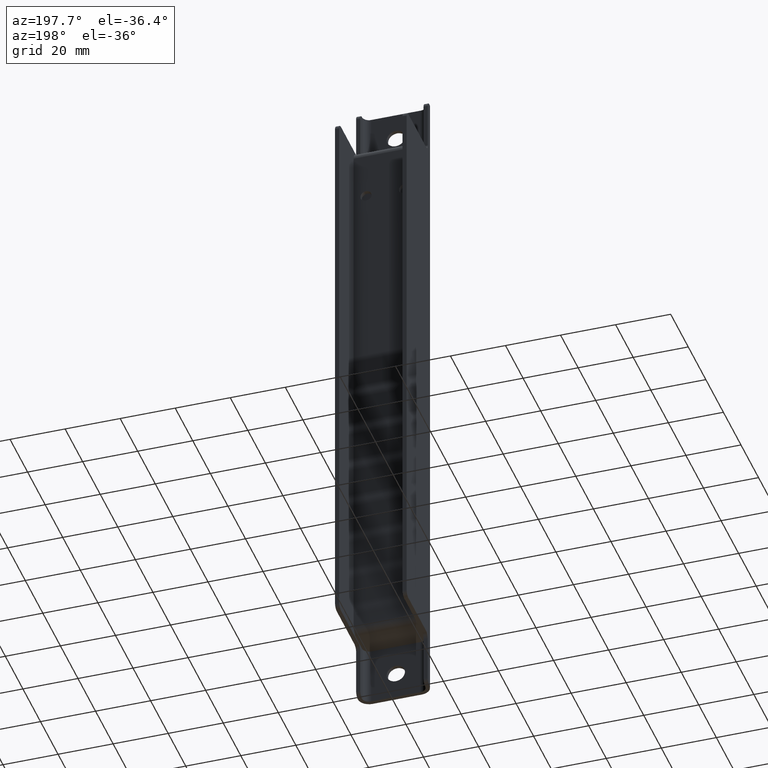
[diagram: clean part render]
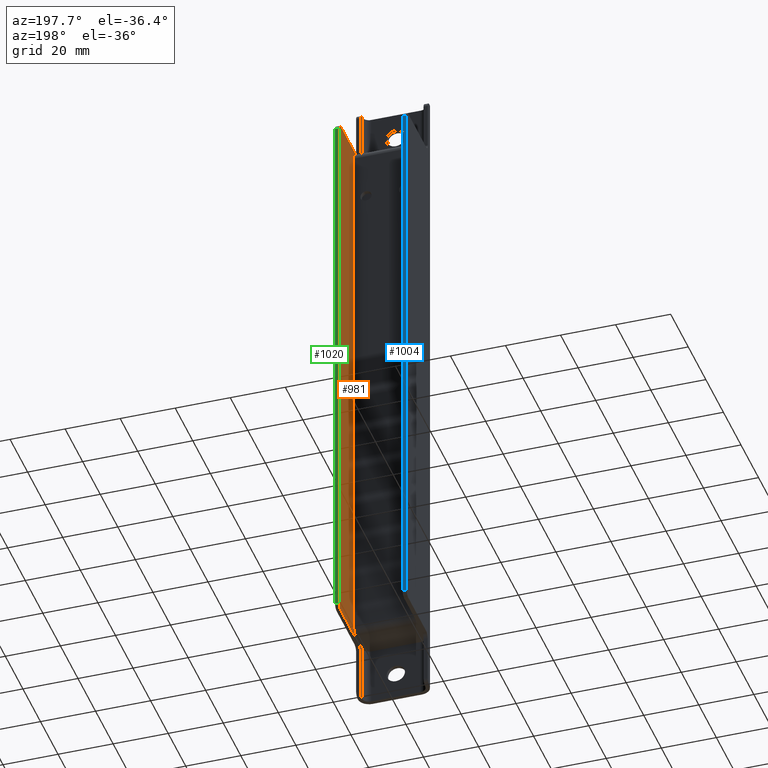
[diagram: same view with three faces highlighted in distinct colors, each labeled with its STEP entity id]
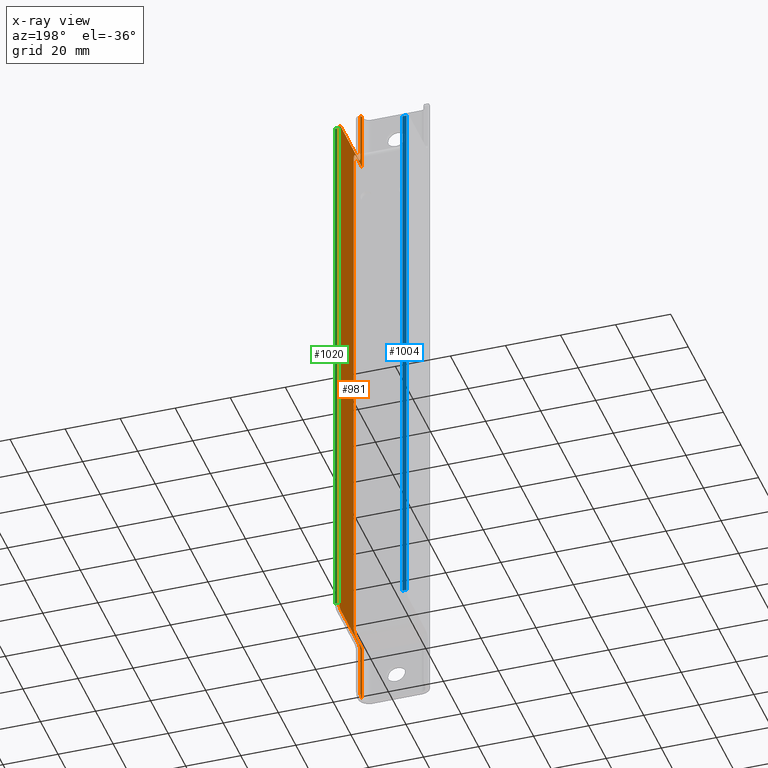
[diagram: x-ray of the same camera — body ghosted, the three highlighted faces saturated]
A machine part, auxiliary view with three faces highlighted in distinct colors.
The next image is the same camera in x-ray (body ghosted, the three faces saturated) — at least one of them is partly hidden behind the body in this view.
Their STEP definitions:

[orange] entity #981 — the highlighted planar face has unit normal (1, -0, 0).
#74=CIRCLE('',#1078,3.);
#75=CIRCLE('',#1079,3.);
#76=CIRCLE('',#1080,2.);
#77=CIRCLE('',#1081,2.);
#78=CIRCLE('',#1082,2.);
#79=CIRCLE('',#1083,2.);
#80=CIRCLE('',#1084,2.);
#81=CIRCLE('',#1085,2.);
#172=ORIENTED_EDGE('',*,*,#431,.F.);
#173=ORIENTED_EDGE('',*,*,#455,.T.);
#174=ORIENTED_EDGE('',*,*,#436,.F.);
#175=ORIENTED_EDGE('',*,*,#456,.T.);
#176=ORIENTED_EDGE('',*,*,#424,.F.);
#177=ORIENTED_EDGE('',*,*,#457,.F.);
#178=ORIENTED_EDGE('',*,*,#458,.T.);
#179=ORIENTED_EDGE('',*,*,#459,.T.);
#180=ORIENTED_EDGE('',*,*,#460,.T.);
#181=ORIENTED_EDGE('',*,*,#461,.T.);
#182=ORIENTED_EDGE('',*,*,#462,.T.);
#183=ORIENTED_EDGE('',*,*,#463,.T.);
#184=ORIENTED_EDGE('',*,*,#464,.T.);
#185=ORIENTED_EDGE('',*,*,#465,.T.);
#186=ORIENTED_EDGE('',*,*,#466,.T.);
#187=ORIENTED_EDGE('',*,*,#467,.T.);
#188=ORIENTED_EDGE('',*,*,#468,.T.);
#189=ORIENTED_EDGE('',*,*,#469,.F.);
#424=EDGE_CURVE('',#568,#569,#652,.T.);
#431=EDGE_CURVE('',#574,#575,#657,.T.);
#436=EDGE_CURVE('',#578,#579,#658,.T.);
#455=EDGE_CURVE('',#574,#579,#74,.T.);
#456=EDGE_CURVE('',#578,#569,#75,.T.);
#457=EDGE_CURVE('',#594,#568,#669,.T.);
#458=EDGE_CURVE('',#594,#595,#76,.T.);
#459=EDGE_CURVE('',#595,#596,#670,.T.);
#460=EDGE_CURVE('',#596,#597,#77,.T.);
#461=EDGE_CURVE('',#597,#598,#671,.T.);
#462=EDGE_CURVE('',#598,#599,#78,.T.);
#463=EDGE_CURVE('',#599,#600,#672,.T.);
#464=EDGE_CURVE('',#600,#601,#79,.T.);
#465=EDGE_CURVE('',#601,#602,#673,.T.);
#466=EDGE_CURVE('',#602,#603,#80,.T.);
#467=EDGE_CURVE('',#603,#604,#674,.T.);
#468=EDGE_CURVE('',#604,#605,#81,.T.);
#469=EDGE_CURVE('',#575,#605,#675,.T.);
#568=VERTEX_POINT('',#1543);
#569=VERTEX_POINT('',#1544);
#574=VERTEX_POINT('',#1556);
#575=VERTEX_POINT('',#1558);
#578=VERTEX_POINT('',#1567);
#579=VERTEX_POINT('',#1568);
#594=VERTEX_POINT('',#1606);
#595=VERTEX_POINT('',#1608);
#596=VERTEX_POINT('',#1610);
#597=VERTEX_POINT('',#1612);
#598=VERTEX_POINT('',#1614);
#599=VERTEX_POINT('',#1616);
#600=VERTEX_POINT('',#1618);
#601=VERTEX_POINT('',#1620);
#602=VERTEX_POINT('',#1622);
#603=VERTEX_POINT('',#1624);
#604=VERTEX_POINT('',#1626);
#605=VERTEX_POINT('',#1628);
#652=LINE('',#1542,#740);
#657=LINE('',#1557,#745);
#658=LINE('',#1566,#746);
#669=LINE('',#1605,#757);
#670=LINE('',#1609,#758);
#671=LINE('',#1613,#759);
#672=LINE('',#1617,#760);
#673=LINE('',#1621,#761);
#674=LINE('',#1625,#762);
#675=LINE('',#1629,#763);
#740=VECTOR('',#1212,1000.);
#745=VECTOR('',#1223,1000.);
#746=VECTOR('',#1234,1000.);
#757=VECTOR('',#1269,1000.);
#758=VECTOR('',#1272,1000.);
#759=VECTOR('',#1275,1000.);
#760=VECTOR('',#1278,1000.);
#761=VECTOR('',#1281,1000.);
#762=VECTOR('',#1284,1000.);
#763=VECTOR('',#1287,1000.);
#823=EDGE_LOOP('',(#172,#173,#174,#175,#176,#177,#178,#179,#180,#181,#182,
#183,#184,#185,#186,#187,#188,#189));
#891=FACE_BOUND('',#823,.T.);
#952=PLANE('',#1077);
#981=ADVANCED_FACE('',(#891),#952,.F.);
#1077=AXIS2_PLACEMENT_3D('',#1602,#1263,#1264);
#1078=AXIS2_PLACEMENT_3D('',#1603,#1265,#1266);
#1079=AXIS2_PLACEMENT_3D('',#1604,#1267,#1268);
#1080=AXIS2_PLACEMENT_3D('',#1607,#1270,#1271);
#1081=AXIS2_PLACEMENT_3D('',#1611,#1273,#1274);
#1082=AXIS2_PLACEMENT_3D('',#1615,#1276,#1277);
#1083=AXIS2_PLACEMENT_3D('',#1619,#1279,#1280);
#1084=AXIS2_PLACEMENT_3D('',#1623,#1282,#1283);
#1085=AXIS2_PLACEMENT_3D('',#1627,#1285,#1286);
#1212=DIRECTION('',(4.06163832661068E-16,1.,-8.6117241928882E-15));
#1223=DIRECTION('',(-5.71375592277907E-16,-1.,-1.96182842258948E-15));
#1234=DIRECTION('',(-1.21257418434899E-16,-3.32494788514936E-15,-1.));
#1263=DIRECTION('',(1.,-4.06163832661068E-16,8.93686180177302E-17));
#1264=DIRECTION('',(8.93686180177302E-17,1.66533453693773E-16,-1.));
#1265=DIRECTION('',(1.,-4.06163832661068E-16,8.93686180177302E-17));
#1266=DIRECTION('',(4.06163832661068E-16,1.,0.));
#1267=DIRECTION('',(1.,-4.06163832661068E-16,8.93686180177302E-17));
#1268=DIRECTION('',(4.06163832661068E-16,1.,0.));
#1269=DIRECTION('',(8.93686180177302E-17,1.31838984174237E-16,-1.));
#1270=DIRECTION('',(-1.,4.06163832661068E-16,-8.93686180177302E-17));
#1271=DIRECTION('',(8.93686180177302E-17,1.66533453693773E-16,-1.));
#1272=DIRECTION('',(8.93686180177302E-17,4.2624633981144E-17,-1.));
#1273=DIRECTION('',(1.,-4.06163832661068E-16,8.93686180177302E-17));
#1274=DIRECTION('',(8.93686180177302E-17,1.66533453693773E-16,-1.));
#1275=DIRECTION('',(4.06163832661068E-16,1.,1.66533453693773E-16));
#1276=DIRECTION('',(-1.,4.06163832661068E-16,-8.93686180177302E-17));
#1277=DIRECTION('',(8.93686180177302E-17,1.66533453693773E-16,-1.));
#1278=DIRECTION('',(8.93686180177302E-17,1.66533453693773E-16,-1.));
#1279=DIRECTION('',(-1.,4.06163832661068E-16,-8.93686180177302E-17));
#1280=DIRECTION('',(8.93686180177302E-17,1.66533453693773E-16,-1.));
#1281=DIRECTION('',(-4.06163832661068E-16,-1.,-1.66533453693773E-16));
#1282=DIRECTION('',(1.,-4.06163832661068E-16,8.93686180177302E-17));
#1283=DIRECTION('',(8.93686180177302E-17,1.66533453693773E-16,-1.));
#1284=DIRECTION('',(8.93686180177302E-17,1.66533453693773E-16,-1.));
#1285=DIRECTION('',(-1.,4.06163832661068E-16,-8.93686180177302E-17));
#1286=DIRECTION('',(8.93686180177551E-17,6.15323764163733E-14,-1.));
#1287=DIRECTION('',(8.93686180177302E-17,1.31838984174237E-16,-1.));
#1542=CARTESIAN_POINT('',(11.5,-16.4999999999964,103.5));
#1543=CARTESIAN_POINT('',(11.5,-25.9999999999999,103.5));
#1544=CARTESIAN_POINT('',(11.5,-19.4999999999982,103.5));
#1556=CARTESIAN_POINT('',(11.5,-19.4999999999989,-103.5));
#1557=CARTESIAN_POINT('',(11.5,-16.4999999999959,-103.5));
#1558=CARTESIAN_POINT('',(11.5,-25.9999999999999,-103.5));
#1566=CARTESIAN_POINT('',(11.5,-16.4999999999974,350.5));
#1567=CARTESIAN_POINT('',(11.5,-16.4999999999982,100.5));
#1568=CARTESIAN_POINT('',(11.5,-16.4999999999989,-100.5));
#1602=CARTESIAN_POINT('',(11.5,-28.4999999999999,-2.75106686463224E-15));
#1603=CARTESIAN_POINT('',(11.5,-19.4999999999989,-100.5));
#1604=CARTESIAN_POINT('',(11.5,-19.4999999999982,100.5));
#1605=CARTESIAN_POINT('',(11.5,-26.,375.));
#1606=CARTESIAN_POINT('',(11.5,-25.9999999999999,125.));
#1607=CARTESIAN_POINT('',(11.5,-25.9999999999999,123.));
#1608=CARTESIAN_POINT('',(11.5,-23.9999999999999,123.));
#1609=CARTESIAN_POINT('',(11.5,-23.9999999999999,-125.));
#1610=CARTESIAN_POINT('',(11.5,-23.9999999999999,106.));
#1611=CARTESIAN_POINT('',(11.5,-21.9999999999999,106.));
#1612=CARTESIAN_POINT('',(11.5,-21.9999999999999,104.));
#1613=CARTESIAN_POINT('',(11.5,-28.4999999999999,104.));
#1614=CARTESIAN_POINT('',(11.5,-2.,104.));
#1615=CARTESIAN_POINT('',(11.4999999999998,-2.,102.));
#1616=CARTESIAN_POINT('',(11.4999999999998,-3.46944695195361E-15,102.));
#1617=CARTESIAN_POINT('',(11.4999999999998,1.38777878078145E-14,1.07920257032452E-15));
#1618=CARTESIAN_POINT('',(11.4999999999999,3.12250225675825E-14,-102.));
#1619=CARTESIAN_POINT('',(11.4999999999999,-1.99999999999997,-102.));
#1620=CARTESIAN_POINT('',(11.4999999999999,-1.99999999999997,-104.));
#1621=CARTESIAN_POINT('',(11.5000000000001,-28.4999999999999,-104.));
#1622=CARTESIAN_POINT('',(11.5000000000001,-21.9999999999999,-104.));
#1623=CARTESIAN_POINT('',(11.5000000000001,-21.9999999999999,-106.));
#1624=CARTESIAN_POINT('',(11.5000000000001,-23.9999999999999,-106.));
#1625=CARTESIAN_POINT('',(11.5,-23.9999999999999,125.));
#1626=CARTESIAN_POINT('',(11.5000000000001,-23.9999999999999,-123.));
#1627=CARTESIAN_POINT('',(11.5000000000001,-25.9999999999999,-123.));
#1628=CARTESIAN_POINT('',(11.5000000000001,-25.9999999999999,-125.));
#1629=CARTESIAN_POINT('',(11.5,-26.,375.));

[blue] entity #1004 — the highlighted planar face has unit normal (-0, 1, 0).
#282=ORIENTED_EDGE('',*,*,#448,.F.);
#283=ORIENTED_EDGE('',*,*,#503,.T.);
#284=ORIENTED_EDGE('',*,*,#496,.T.);
#285=ORIENTED_EDGE('',*,*,#504,.T.);
#448=EDGE_CURVE('',#587,#588,#665,.T.);
#496=EDGE_CURVE('',#615,#614,#692,.T.);
#503=EDGE_CURVE('',#587,#615,#697,.T.);
#504=EDGE_CURVE('',#614,#588,#698,.T.);
#587=VERTEX_POINT('',#1588);
#588=VERTEX_POINT('',#1590);
#614=VERTEX_POINT('',#1682);
#615=VERTEX_POINT('',#1684);
#665=LINE('',#1589,#753);
#692=LINE('',#1683,#780);
#697=LINE('',#1697,#785);
#698=LINE('',#1699,#786);
#753=VECTOR('',#1253,1000.);
#780=VECTOR('',#1360,1000.);
#785=VECTOR('',#1377,1000.);
#786=VECTOR('',#1380,1000.);
#848=EDGE_LOOP('',(#282,#283,#284,#285));
#916=FACE_BOUND('',#848,.T.);
#960=PLANE('',#1120);
#1004=ADVANCED_FACE('',(#916),#960,.T.);
#1120=AXIS2_PLACEMENT_3D('',#1698,#1378,#1379);
#1253=DIRECTION('',(3.32185076179638E-17,-1.66533453693773E-16,1.));
#1360=DIRECTION('',(3.32185076179638E-17,-1.66533453693773E-16,1.));
#1377=DIRECTION('',(-1.,-3.08531750618206E-15,-8.93686180177308E-17));
#1378=DIRECTION('',(-3.08531750618206E-15,1.,1.66533453693773E-16));
#1379=DIRECTION('',(-1.,-3.08531750618206E-15,-8.93686180177308E-17));
#1380=DIRECTION('',(1.,3.08531750618206E-15,8.93686180177308E-17));
#1588=CARTESIAN_POINT('',(-11.5000000000001,3.46944695195361E-15,-102.));
#1589=CARTESIAN_POINT('',(-11.5000000000002,-1.38777878078145E-14,2.92058062013812E-16));
#1590=CARTESIAN_POINT('',(-11.5000000000001,-3.12250225675825E-14,102.));
#1682=CARTESIAN_POINT('',(-13.0000000000001,-3.12250225675825E-14,102.));
#1683=CARTESIAN_POINT('',(-13.0000000000002,-7.63278329429795E-14,375.));
#1684=CARTESIAN_POINT('',(-13.0000000000001,3.46944695195361E-15,-102.));
#1697=CARTESIAN_POINT('',(-11.5000000000002,3.81639164714898E-14,-102.));
#1698=CARTESIAN_POINT('',(-11.5000000000002,-4.16333634234434E-14,375.));
#1699=CARTESIAN_POINT('',(-10.0000000000002,3.46944695195361E-15,102.));

[green] entity #1020 — the highlighted planar face has unit normal (0, 1, 0).
#362=ORIENTED_EDGE('',*,*,#521,.T.);
#363=ORIENTED_EDGE('',*,*,#531,.T.);
#364=ORIENTED_EDGE('',*,*,#463,.F.);
#365=ORIENTED_EDGE('',*,*,#530,.T.);
#463=EDGE_CURVE('',#599,#600,#672,.T.);
#521=EDGE_CURVE('',#626,#625,#709,.T.);
#530=EDGE_CURVE('',#599,#626,#716,.T.);
#531=EDGE_CURVE('',#625,#600,#717,.T.);
#599=VERTEX_POINT('',#1616);
#600=VERTEX_POINT('',#1618);
#625=VERTEX_POINT('',#1733);
#626=VERTEX_POINT('',#1735);
#672=LINE('',#1617,#760);
#709=LINE('',#1734,#797);
#716=LINE('',#1752,#804);
#717=LINE('',#1754,#805);
#760=VECTOR('',#1278,1000.);
#797=VECTOR('',#1423,1000.);
#804=VECTOR('',#1444,1000.);
#805=VECTOR('',#1447,1000.);
#864=EDGE_LOOP('',(#362,#363,#364,#365));
#932=FACE_BOUND('',#864,.T.);
#969=PLANE('',#1144);
#1020=ADVANCED_FACE('',(#932),#969,.T.);
#1144=AXIS2_PLACEMENT_3D('',#1753,#1445,#1446);
#1278=DIRECTION('',(8.93686180177302E-17,1.66533453693773E-16,-1.));
#1423=DIRECTION('',(8.93686180177302E-17,1.66533453693773E-16,-1.));
#1444=DIRECTION('',(1.,-4.06163832661068E-16,8.93686180177302E-17));
#1445=DIRECTION('',(4.06163832661068E-16,1.,1.66533453693773E-16));
#1446=DIRECTION('',(-1.,4.06163832661068E-16,-8.93686180177302E-17));
#1447=DIRECTION('',(-1.,4.06163832661068E-16,-8.93686180177302E-17));
#1616=CARTESIAN_POINT('',(11.4999999999998,-3.46944695195361E-15,102.));
#1617=CARTESIAN_POINT('',(11.4999999999998,1.38777878078145E-14,1.07920257032452E-15));
#1618=CARTESIAN_POINT('',(11.4999999999999,3.12250225675825E-14,-102.));
#1733=CARTESIAN_POINT('',(12.9999999999999,3.12250225675825E-14,-102.));
#1734=CARTESIAN_POINT('',(12.9999999999998,7.63278329429795E-14,-375.));
#1735=CARTESIAN_POINT('',(12.9999999999998,-3.46944695195361E-15,102.));
#1752=CARTESIAN_POINT('',(11.4999999999998,-3.46944695195361E-15,102.));
#1753=CARTESIAN_POINT('',(11.4999999999998,7.63278329429795E-14,-375.));
#1754=CARTESIAN_POINT('',(9.9999999999999,3.12250225675825E-14,-102.));